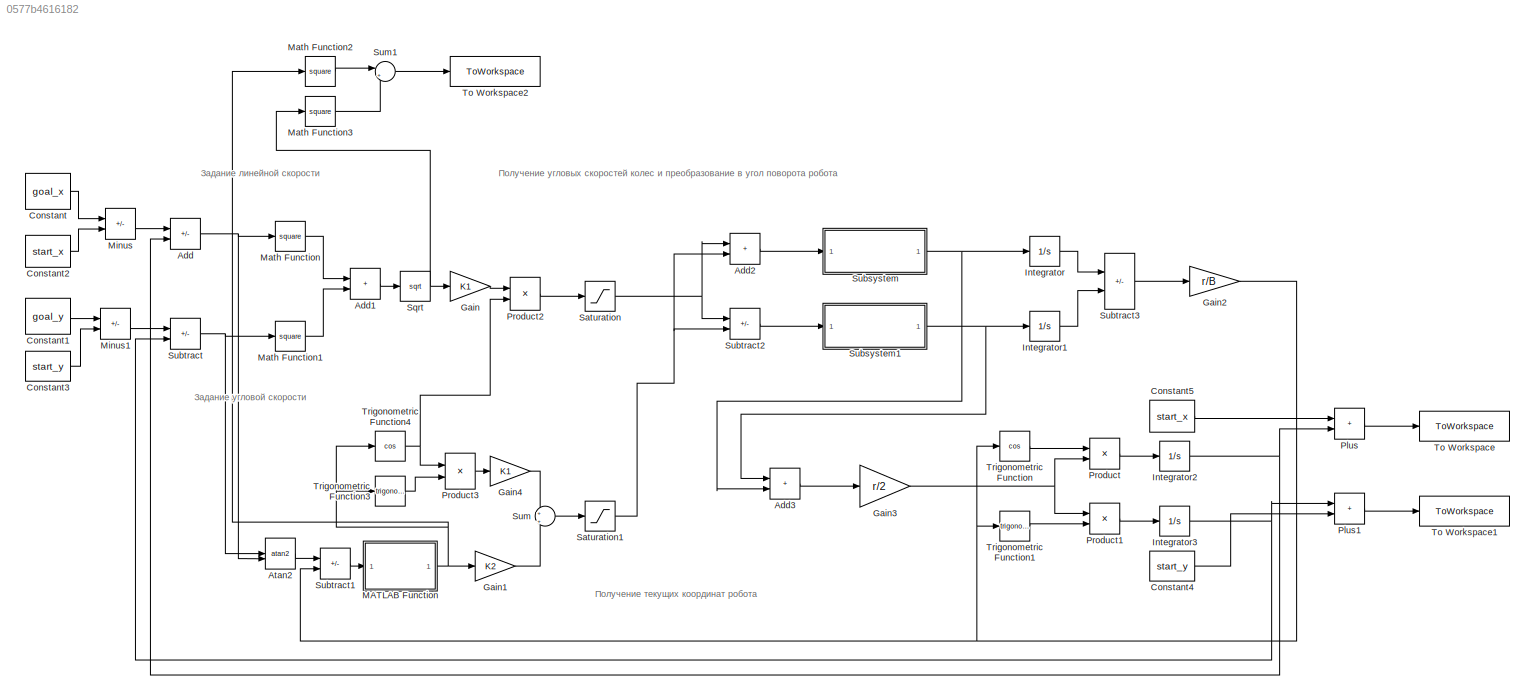
MODEL slx_0577b4616182
KIND model
CONFIG AbsTol = auto
CONFIG EnableMultiTasking = off
CONFIG FixedStep = auto
CONFIG MaxStep = auto
CONFIG MinStep = auto
CONFIG RelTol = 1e-3
CONFIG SampleTimeConstraint = Unconstrained
CONFIG SolverName = VariableStepAuto
CONFIG StartTime = 0.0
CONFIG StopTime = 50
BLOCK [Sum] Add
  IconShape = rectangular
  Inputs = +-
BLOCK [Sum] Add1
  IconShape = rectangular
BLOCK [Sum] Add2
  IconShape = rectangular
BLOCK [Sum] Add3
  IconShape = rectangular
BLOCK [Trigonometry] Atan2
  Operator = atan2
BLOCK [Constant] Constant
  Value = goal_x
BLOCK [Constant] Constant1
  Value = goal_y
BLOCK [Constant] Constant2
  Value = start_x
BLOCK [Constant] Constant3
  Value = start_y
BLOCK [Constant] Constant4
  Value = start_y
BLOCK [Constant] Constant5
  Value = start_x
BLOCK [Gain] Gain
  Gain = K1
BLOCK [Gain] Gain1
  Gain = K2
BLOCK [Gain] Gain2
  Gain = r/B
BLOCK [Gain] Gain3
  Gain = r/2
BLOCK [Gain] Gain4
  Gain = K1
BLOCK [Integrator] Integrator
BLOCK [Integrator] Integrator1
BLOCK [Integrator] Integrator2
BLOCK [Integrator] Integrator3
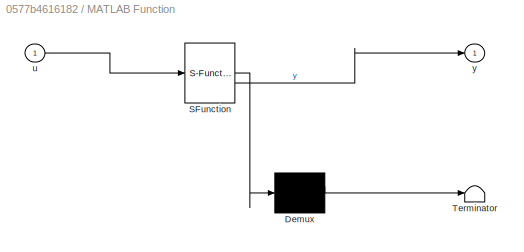
BLOCK [SubSystem] MATLAB Function
  ErrorFcn = Stateflow.Translate.translate
  LibrarySourceBlock = simulink/User-Defined\nFunctions/MATLAB Function
  PermitHierarchicalResolution = ExplicitOnly
  SFBlockType = MATLAB Function
  TreatAsAtomicUnit = on
BLOCK [Demux] MATLAB Function/ Demux 
  Outputs = 1
BLOCK [S-Function] MATLAB Function/ SFunction 
  EnableBusSupport = on
  FunctionName = sf_sfun
  PortCounts = [1 2]
  SFcnIsStateOwnerBlock = off
  SFunctionDeploymentMode = off
  Tag = Stateflow S-Function 2
BLOCK [Terminator] MATLAB Function/ Terminator 
BLOCK [Inport] MATLAB Function/u
BLOCK [Outport] MATLAB Function/y
BLOCK [Math] Math Function
  Operator = square
BLOCK [Math] Math Function1
  Operator = square
BLOCK [Math] Math Function2
  Operator = square
BLOCK [Math] Math Function3
  Operator = square
BLOCK [Sum] Minus
  IconShape = rectangular
  Inputs = +-
BLOCK [Sum] Minus1
  IconShape = rectangular
  Inputs = +-
BLOCK [Sum] Plus
  IconShape = rectangular
BLOCK [Sum] Plus1
  IconShape = rectangular
BLOCK [Product] Product
BLOCK [Product] Product1
BLOCK [Product] Product2
BLOCK [Product] Product3
BLOCK [Saturate] Saturation
  LowerLimit = -6.4
  UpperLimit = 6.4
BLOCK [Saturate] Saturation1
  LowerLimit = -1.6
  UpperLimit = 1.6
BLOCK [Sqrt] Sqrt
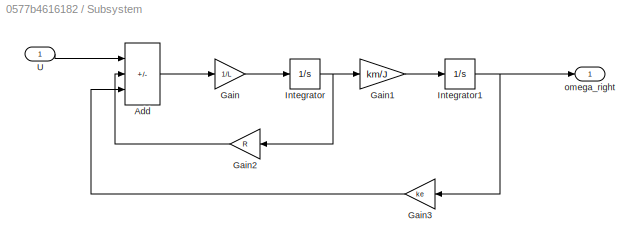
BLOCK [SubSystem] Subsystem
BLOCK [Sum] Subsystem/Add
  IconShape = rectangular
  Inputs = +--
BLOCK [Gain] Subsystem/Gain
  Gain = 1/L
BLOCK [Gain] Subsystem/Gain1
  Gain = km/J
BLOCK [Gain] Subsystem/Gain2
  Gain = R
  NameLocation = top
BLOCK [Gain] Subsystem/Gain3
  Gain = ke
  NameLocation = top
BLOCK [Integrator] Subsystem/Integrator
BLOCK [Integrator] Subsystem/Integrator1
BLOCK [Inport] Subsystem/U
BLOCK [Outport] Subsystem/omega_right
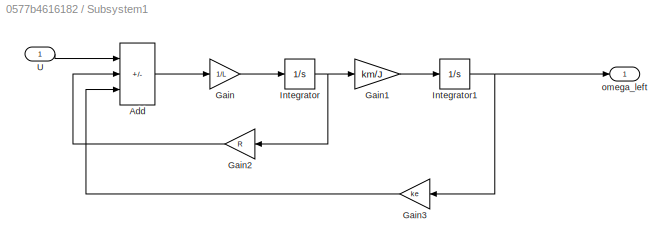
BLOCK [SubSystem] Subsystem1
BLOCK [Sum] Subsystem1/Add
  IconShape = rectangular
  Inputs = +--
BLOCK [Gain] Subsystem1/Gain
  Gain = 1/L
BLOCK [Gain] Subsystem1/Gain1
  Gain = km/J
BLOCK [Gain] Subsystem1/Gain2
  Gain = R
  NameLocation = top
BLOCK [Gain] Subsystem1/Gain3
  Gain = ke
  NameLocation = top
BLOCK [Integrator] Subsystem1/Integrator
BLOCK [Integrator] Subsystem1/Integrator1
BLOCK [Inport] Subsystem1/U
BLOCK [Outport] Subsystem1/omega_left
BLOCK [Sum] Subtract
  IconShape = rectangular
  Inputs = +-
BLOCK [Sum] Subtract1
  IconShape = rectangular
  Inputs = +-
BLOCK [Sum] Subtract2
  IconShape = rectangular
  Inputs = +-
BLOCK [Sum] Subtract3
  IconShape = rectangular
  Inputs = +-
BLOCK [Sum] Sum
  Inputs = +|+
BLOCK [Sum] Sum1
  Inputs = |++
BLOCK [ToWorkspace] To Workspace
  FixptAsFi = on
  MaxDataPoints = inf
  SampleTime = -1
  SaveFormat = Timeseries
  VariableName = x
BLOCK [ToWorkspace] To Workspace1
  FixptAsFi = on
  MaxDataPoints = inf
  SampleTime = -1
  SaveFormat = Timeseries
  VariableName = y
BLOCK [ToWorkspace] To Workspace2
  FixptAsFi = on
  MaxDataPoints = inf
  SampleTime = -1
  SaveFormat = Timeseries
  VariableName = V
BLOCK [Trigonometry] Trigonometric Function
  Operator = cos
BLOCK [Trigonometry] Trigonometric Function1
BLOCK [Trigonometry] Trigonometric Function3
BLOCK [Trigonometry] Trigonometric Function4
  Operator = cos
ANNOTATION (root): Задание линейной скорости
ANNOTATION (root): Задание угловой скорости
ANNOTATION (root): Получение текущих координат робота
ANNOTATION (root): Получение угловых скоростей колес и преобразование в угол поворота робота
LINE Add1:1 -> Sqrt:1
LINE Add2:1 -> Subsystem:1
LINE Add3:1 -> Gain3:1
NET Add:1 -> Atan2:2, Math Function:1
LINE Atan2:1 -> Subtract1:1
LINE Constant1:1 -> Minus1:1
LINE Constant2:1 -> Minus:2
LINE Constant3:1 -> Minus1:2
LINE Constant4:1 -> Plus1:2
LINE Constant5:1 -> Plus:1
LINE Constant:1 -> Minus:1
LINE Gain1:1 -> Sum:2
NET Gain2:1 -> Subtract1:2, Trigonometric Function1:1, Trigonometric Function:1
NET Gain3:1 -> Product1:1, Product:2
LINE Gain4:1 -> Sum:1
LINE Gain:1 -> Product2:1
LINE Integrator1:1 -> Subtract3:2
NET Integrator2:1 -> Add:2, Plus:2
NET Integrator3:1 -> Plus1:1, Subtract:2
LINE Integrator:1 -> Subtract3:1
NET MATLAB Function:1 -> Gain1:1, Math Function2:1, Trigonometric Function3:1, Trigonometric Function4:1
LINE Math Function1:1 -> Add1:2
LINE Math Function2:1 -> Sum1:1
LINE Math Function3:1 -> Sum1:2
LINE Math Function:1 -> Add1:1
LINE Minus1:1 -> Subtract:1
LINE Minus:1 -> Add:1
LINE Plus1:1 -> To Workspace1:1
LINE Plus:1 -> To Workspace:1
LINE Product1:1 -> Integrator3:1
LINE Product2:1 -> Saturation:1
LINE Product3:1 -> Gain4:1
LINE Product:1 -> Integrator2:1
NET Saturation1:1 -> Add2:2, Subtract2:2
NET Saturation:1 -> Add2:1, Subtract2:1
NET Sqrt:1 -> Gain:1, Math Function3:1
LINE Subsystem/Add:1 -> Subsystem/Gain:1
LINE Subsystem/Gain1:1 -> Subsystem/Integrator1:1
LINE Subsystem/Gain2:1 -> Subsystem/Add:2
LINE Subsystem/Gain3:1 -> Subsystem/Add:3
LINE Subsystem/Gain:1 -> Subsystem/Integrator:1
NET Subsystem/Integrator1:1 -> Subsystem/Gain3:1, Subsystem/omega_right:1
NET Subsystem/Integrator:1 -> Subsystem/Gain1:1, Subsystem/Gain2:1
LINE Subsystem/U:1 -> Subsystem/Add:1
LINE Subsystem1/Add:1 -> Subsystem1/Gain:1
LINE Subsystem1/Gain1:1 -> Subsystem1/Integrator1:1
LINE Subsystem1/Gain2:1 -> Subsystem1/Add:2
LINE Subsystem1/Gain3:1 -> Subsystem1/Add:3
LINE Subsystem1/Gain:1 -> Subsystem1/Integrator:1
NET Subsystem1/Integrator1:1 -> Subsystem1/Gain3:1, Subsystem1/omega_left:1
NET Subsystem1/Integrator:1 -> Subsystem1/Gain1:1, Subsystem1/Gain2:1
LINE Subsystem1/U:1 -> Subsystem1/Add:1
NET Subsystem1:1 -> Add3:1, Integrator1:1
NET Subsystem:1 -> Add3:2, Integrator:1
LINE Subtract1:1 -> MATLAB Function:1
LINE Subtract2:1 -> Subsystem1:1
LINE Subtract3:1 -> Gain2:1
NET Subtract:1 -> Atan2:1, Math Function1:1
LINE Sum1:1 -> To Workspace2:1
LINE Sum:1 -> Saturation1:1
LINE Trigonometric Function1:1 -> Product1:2
LINE Trigonometric Function3:1 -> Product3:2
NET Trigonometric Function4:1 -> Product2:2, Product3:1
LINE Trigonometric Function:1 -> Product:1
note: NET lines group one-source signal fan-out (src -> all destinations, sorted); 1:1 wires keep LINE
CHART MATLAB Function states=1 transitions=1
  STATE_LABEL 'eML_blk_kernel()'
  STATE_LABEL 'SCRIPT:\nfunction y = fcn(u)\nif (u <=-pi)\n    y=u+2*pi;\nelseif (u>=pi)\n    y=u-2*pi;\nelse\n    y=u;\nend\n'
CHART  states=0 transitions=0
